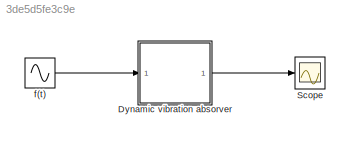
MODEL slx_3de5d5fe3c9e
KIND model
CONFIG AbsTol = auto
CONFIG EnableMultiTasking = off
CONFIG FixedStep = auto
CONFIG MaxStep = auto
CONFIG MinStep = auto
CONFIG PostLoadFcn = m1=100;\nK1=50;\nb=50;\nm2=70;\nK12=50;
CONFIG RelTol = 1e-3
CONFIG SampleTimeConstraint = Unconstrained
CONFIG SolverName = VariableStepAuto
CONFIG StartTime = 0.0
CONFIG StopTime = 10
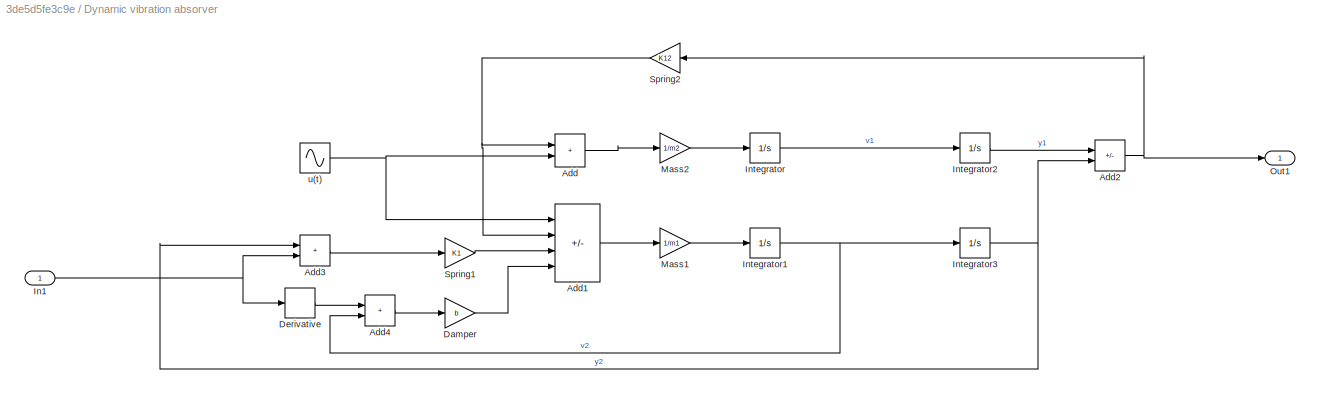
BLOCK [SubSystem] Dynamic vibration absorver
  Ports = [1, 1]
  RequestExecContextInheritance = off
BLOCK [Sum] Dynamic vibration absorver/Add
  IconShape = rectangular
  Ports = [2, 1]
BLOCK [Sum] Dynamic vibration absorver/Add1
  IconShape = rectangular
  Inputs = --+-
  Ports = [4, 1]
BLOCK [Sum] Dynamic vibration absorver/Add2
  IconShape = rectangular
  Inputs = +-
  Ports = [2, 1]
BLOCK [Sum] Dynamic vibration absorver/Add3
  IconShape = rectangular
  Ports = [2, 1]
BLOCK [Sum] Dynamic vibration absorver/Add4
  IconShape = rectangular
  Ports = [2, 1]
BLOCK [Gain] Dynamic vibration absorver/Damper
  Gain = b
BLOCK [Derivative] Dynamic vibration absorver/Derivative
BLOCK [Inport] Dynamic vibration absorver/In1
BLOCK [Integrator] Dynamic vibration absorver/Integrator
  Ports = [1, 1]
BLOCK [Integrator] Dynamic vibration absorver/Integrator1
  Ports = [1, 1]
BLOCK [Integrator] Dynamic vibration absorver/Integrator2
  Ports = [1, 1]
BLOCK [Integrator] Dynamic vibration absorver/Integrator3
  Ports = [1, 1]
BLOCK [Gain] Dynamic vibration absorver/Mass1
  Gain = 1/m1
BLOCK [Gain] Dynamic vibration absorver/Mass2
  Gain = 1/m2
BLOCK [Outport] Dynamic vibration absorver/Out1
BLOCK [Gain] Dynamic vibration absorver/Spring1
  Gain = K1
BLOCK [Gain] Dynamic vibration absorver/Spring2
  Gain = K12
BLOCK [Sin] Dynamic vibration absorver/u(t)
  Ports = [0, 1]
  SampleTime = 0
BLOCK [Scope] Scope
  Floating = off
  NumInputPorts = 1
  Ports = [1]
  ScopeSpecificationString = Simulink.scopes.TimeScopeBlockCfg('CurrentConfiguration', extmgr.ConfigurationSet(extmgr.Configuration('Core','General UI',true),extmgr.Configuration('Core','Source UI',true),extmgr.Configuration('Sources','WiredSimulink',true),extmgr.Configuration('Visuals','Time Domain',true,'SerializedDisplays',{struct('MinYLimReal','-15.30483','MaxYLimReal','137.74349','YLabelReal','','MinYLimMag','0.00000','M...<+1405ch>
BLOCK [Sin] f(t)
  Ports = [0, 1]
  SampleTime = 0
LINE Dynamic vibration absorver/Add1:1 -> Dynamic vibration absorver/Mass1:1
NET Dynamic vibration absorver/Add2:1 -> Dynamic vibration absorver/Out1:1, Dynamic vibration absorver/Spring2:1
LINE Dynamic vibration absorver/Add3:1 -> Dynamic vibration absorver/Spring1:1
LINE Dynamic vibration absorver/Add4:1 -> Dynamic vibration absorver/Damper:1
LINE Dynamic vibration absorver/Add:1 -> Dynamic vibration absorver/Mass2:1
LINE Dynamic vibration absorver/Damper:1 -> Dynamic vibration absorver/Add1:4
LINE Dynamic vibration absorver/Derivative:1 -> Dynamic vibration absorver/Add4:1
NET Dynamic vibration absorver/In1:1 -> Dynamic vibration absorver/Add3:2, Dynamic vibration absorver/Derivative:1
NET Dynamic vibration absorver/Integrator1:1 -> Dynamic vibration absorver/Add4:2, Dynamic vibration absorver/Integrator3:1
LINE Dynamic vibration absorver/Integrator2:1 -> Dynamic vibration absorver/Add2:1
NET Dynamic vibration absorver/Integrator3:1 -> Dynamic vibration absorver/Add2:2, Dynamic vibration absorver/Add3:1
LINE Dynamic vibration absorver/Integrator:1 -> Dynamic vibration absorver/Integrator2:1
LINE Dynamic vibration absorver/Mass1:1 -> Dynamic vibration absorver/Integrator1:1
LINE Dynamic vibration absorver/Mass2:1 -> Dynamic vibration absorver/Integrator:1
LINE Dynamic vibration absorver/Spring1:1 -> Dynamic vibration absorver/Add1:3
NET Dynamic vibration absorver/Spring2:1 -> Dynamic vibration absorver/Add1:2, Dynamic vibration absorver/Add:1
NET Dynamic vibration absorver/u(t):1 -> Dynamic vibration absorver/Add1:1, Dynamic vibration absorver/Add:2
LINE Dynamic vibration absorver:1 -> Scope:1
LINE f(t):1 -> Dynamic vibration absorver:1
note: NET lines group one-source signal fan-out (src -> all destinations, sorted); 1:1 wires keep LINE
